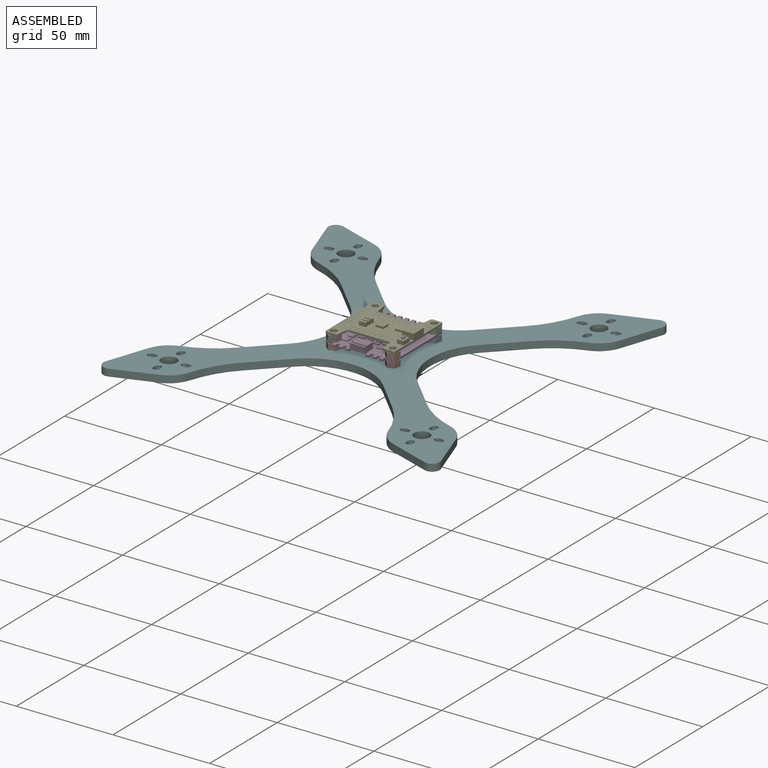
[diagram: assembled view]
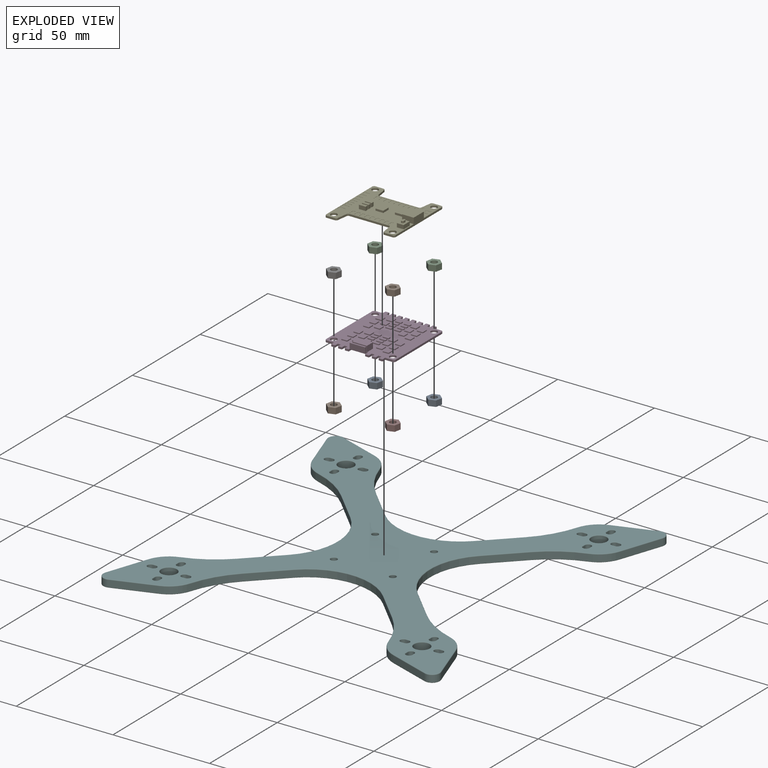
[diagram: exploded view]
GUIDED TOUR — MATED ASSEMBLY (Onshape document e8339020d537f8fa93d6a703, AutoMate assembly e8339020d537f8fa93d6a703_1a3c3acef15f079ed02e62ee_de662026c9102e0390e4941d_default)

This assembly has 11 components, labeled P0..P10 below (a component is one placed occurrence of a part; the same part can appear more than once), held together by 10 mates. A mate is a constraint between two components; its type names the relative motion it leaves free:
  FASTENED — locks the two components together rigidly (no relative motion).
Axis/direction vectors are unit vectors and 'through' points are millimeter coordinates, both in the assembly's world frame.

MATES
  1. FASTENED "Fastened 3": P7 <-> P5, direction (0.000, 0.000, -1.000) through (15.50, -15.32, 1.67) mm
  2. FASTENED "Fastened 1": P9 <-> P5, direction (0.000, 0.000, -1.000) through (-15.00, -15.32, 1.67) mm
  3. FASTENED "Fastened 5": P3 <-> P8, direction (0.000, 0.000, -1.000) through (15.50, 15.18, 4.67) mm
  4. FASTENED "Fastened 2": P0 <-> P5, direction (0.000, 0.000, -1.000) through (-15.00, 15.18, 1.67) mm
  5. FASTENED "Fastened 10": P4 <-> P2, direction (0.000, 0.000, -1.000) through (15.50, 15.18, 8.67) mm
  6. FASTENED "Fastened 8": P2 <-> P3, direction (0.000, 0.000, -1.000) through (15.50, 15.18, 5.67) mm
  7. FASTENED "Fastened 9": P6 <-> P3, direction (0.000, 0.000, -1.000) through (-15.00, -15.32, 5.67) mm
  8. FASTENED "Fastened 4": P8 <-> P5, direction (0.000, 0.000, -1.000) through (15.50, 15.18, 1.67) mm
  9. FASTENED "Fastened 6": P10 <-> P3, direction (0.000, 0.000, -1.000) through (-15.00, 15.18, 5.67) mm
  10. FASTENED "Fastened 7": P1 <-> P3, direction (0.000, 0.000, -1.000) through (15.50, -15.32, 5.67) mm

ASSEMBLY ORDER
  1. P3 — the base component [order verified]
  2. P1 [order verified]
  3. P10 [order verified]
  4. P8 [order verified]
  5. P7 [order verified]
  6. P6 [order verified]
  7. P2 [order verified]
  8. P9 [order verified]
  9. P0 [order verified]
  10. P4 [order verified]
  11. P5 [order verified]
Order-tag legend:
  [order verified] — this step's position reverses a verified removal order: the component was checked to insert without passing through the ones already placed.

Of the 11 components, 1 carries the full construction recipe — the FeatureScript program that regenerates the part's solid from scratch; the rest are supplied as boundary geometry only.
Each toured component is shown spotlighted twice — in the assembled view, then in the exploded view, where a leader line traces a displaced component back to its assembled socket (saturated green if recipe-attached, orange if geometry-only; every other component desaturated gray) — followed by its recipe or geometry summary and the mates that hold it.
NOTE — document 2 of 2 of this assembly tour. The two overview renders and the header above are repeated from document 1; the component sections below continue where the previous document stopped.
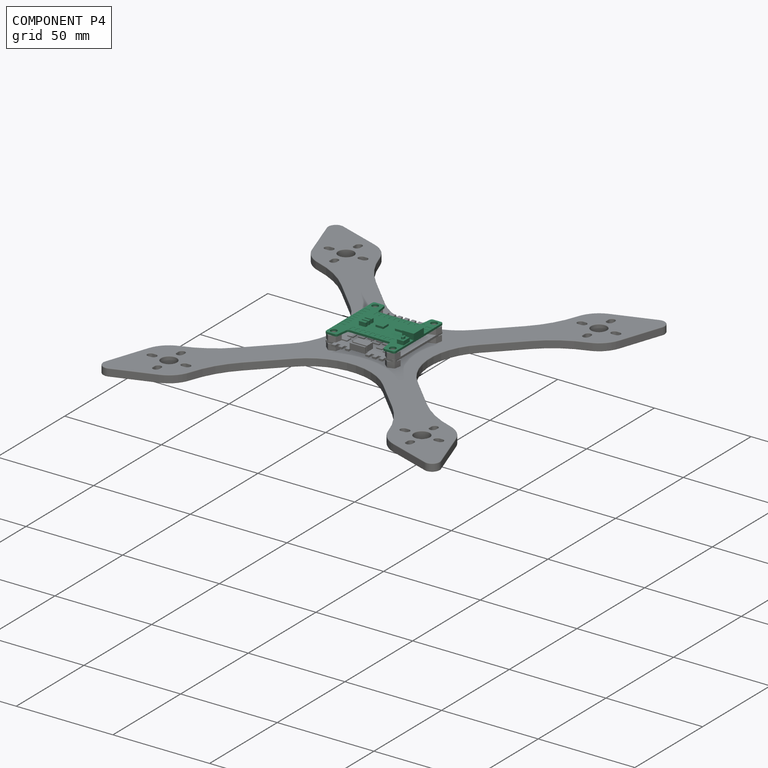
[diagram: component P4 — assembled]
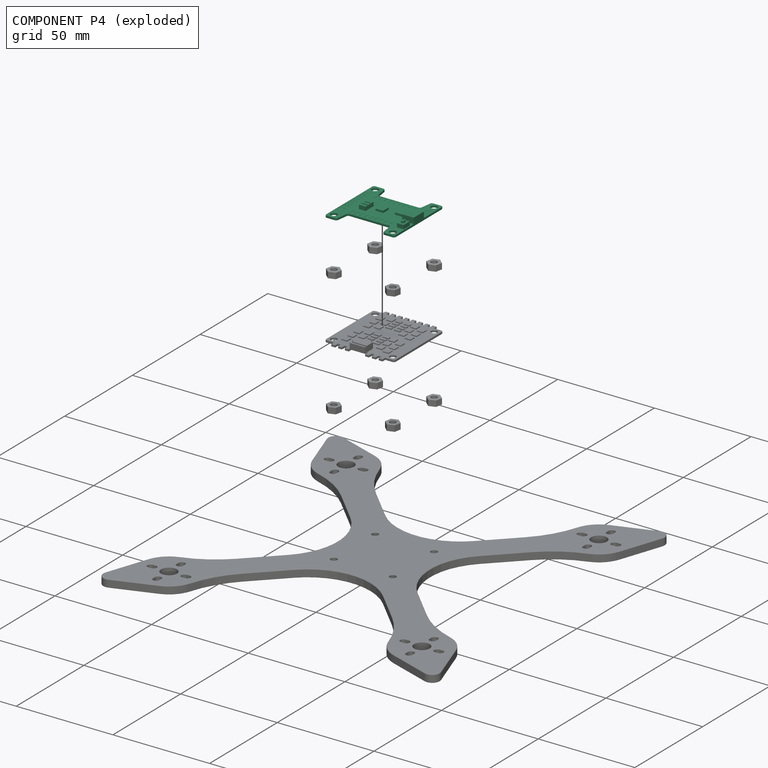
[diagram: component P4 — exploded]
COMPONENT P4 — recipe-attached (CADFS 00478924, mesh-verified: the recipe's output STEP matches this component's geometry to below the mesh-comparison resolution (tessellation chordal tolerance ~0.0766 mm)).
Held by: FASTENED mate "Fastened 10" to P2.
Construction recipe (FeatureScript — the CAD program that rebuilds this solid; sketch coordinates are in the units given by the * unit suffixes, e.g. mm):

FeatureScript 1511;
import(path : "onshape/std/geometry.fs", version : "1511.0");
import(path : "onshape/std/common.fs", version : "1511.0");
const mm = millimeter;
const VERTEX = EntityType.VERTEX;
const EDGE = EntityType.EDGE;
const FACE = EntityType.FACE;
const BODY = EntityType.BODY;
function v(x, y){return vector(x, y);}
function OD(order){return orderDisambiguation(order);}
function OSD(set){return originalSetDisambiguation(set);}
function TD(topology){return topologyDisambiguation(topology);}
function TDD(query){return trueDependencyDisambiguation(query);}
function sQuery(a, b, c) {return sketchEntityQuery(a, b, c);}

annotation { "Feature Type Name" : "Feature", "Feature Type Description" : "" }
export const myFeature = defineFeature(function(context is Context, id is Id, definition is map)
    precondition{}
    {
        {
            var Q0;
            Q0=qCreatedBy(makeId("Top.planeOp"),FACE);
            var sketch = newSketch(context, id + "F0", { "sketchPlane" : qUnion([Q0])});
            skLineSegment(sketch, "E0.bottom", {"start": v(17, -18) * mm, "end": v(12.87, -18) * mm});
            skLineSegment(sketch, "E0.top", {"start": v(17, 18) * mm, "end": v(12.87, 18) * mm});
            skLineSegment(sketch, "E0.left", {"start": v(18, -17) * mm, "end": v(18, 17) * mm});
            skLineSegment(sketch, "E0.right", {"start": v(-18, -17) * mm, "end": v(-18, 17) * mm});
            skPoint(sketch, "E0.middle", {"position": v(0, 0) * mm});
            skLineSegment(sketch, "E1.bottom", {"start": v(15.25, 15.25) * mm, "end": v(-15.25, 15.25) * mm, "construction": true});
            skLineSegment(sketch, "E1.top", {"start": v(15.25, -15.25) * mm, "end": v(-15.25, -15.25) * mm, "construction": true});
            skLineSegment(sketch, "E1.left", {"start": v(15.25, 15.25) * mm, "end": v(15.25, -15.25) * mm, "construction": true});
            skLineSegment(sketch, "E1.right", {"start": v(-15.25, 15.25) * mm, "end": v(-15.25, -15.25) * mm, "construction": true});
            skCircle(sketch, "E2", {"center": v(-15.25, 15.25) * mm, "radius": 1.63 * mm});
            skCircle(sketch, "E3.MirrorC", {"center": v(15.25, 15.25) * mm, "radius": 1.63 * mm});
            skCircle(sketch, "E4.MirrorC", {"center": v(-15.25, -15.25) * mm, "radius": 1.63 * mm});
            skCircle(sketch, "E5.MirrorC", {"center": v(15.25, -15.25) * mm, "radius": 1.63 * mm});
            skLineSegment(sketch, "E6.left", {"start": v(18, -11) * mm, "end": v(18, 11) * mm});
            skLineSegment(sketch, "E6.right", {"start": v(-18, -11) * mm, "end": v(-18, 11) * mm});
            skLineSegment(sketch, "E7", {"start": v(-11.88, 17.14) * mm, "end": v(-11.12, 11.86) * mm});
            skLineSegment(sketch, "E8.MirrorCS", {"start": v(11.88, 17.14) * mm, "end": v(11.12, 11.86) * mm});
            skLineSegment(sketch, "E9.MirrorCS", {"start": v(-11.88, -17.14) * mm, "end": v(-11.12, -11.86) * mm});
            skLineSegment(sketch, "E10.MirrorCS", {"start": v(11.88, -17.14) * mm, "end": v(11.12, -11.86) * mm});
            skLineSegment(sketch, "E11.trimOffspring", {"start": v(10.13, 11) * mm, "end": v(-10.13, 11) * mm});
            skLineSegment(sketch, "E12.trimOffspring", {"start": v(10.13, -11) * mm, "end": v(-10.13, -11) * mm});
            skLineSegment(sketch, "E13.trimOffspring", {"start": v(-12.87, 18) * mm, "end": v(-17, 18) * mm});
            skLineSegment(sketch, "E14.trimOffspring", {"start": v(-12.87, -18) * mm, "end": v(-17, -18) * mm});
            skPoint(sketch, "E15.visualSharp", {"position": v(-18, 18) * mm});
            skArc(sketch, "E15.filletArc", {"start": v(-17, 18) * mm, "mid": v(-17.7, 17.7) * mm, "end": v(-18, 17) * mm});
            skPoint(sketch, "E16.visualSharp", {"position": v(-12, 18) * mm});
            skArc(sketch, "E16.filletArc", {"start": v(-11.88, 17.14) * mm, "mid": v(-12.21, 17.76) * mm, "end": v(-12.87, 18) * mm});
            skPoint(sketch, "E17.visualSharp", {"position": v(-11, 11) * mm});
            skArc(sketch, "E17.filletArc", {"start": v(-11.12, 11.86) * mm, "mid": v(-10.78, 11.24) * mm, "end": v(-10.13, 11) * mm});
            skPoint(sketch, "E18.visualSharp", {"position": v(12, 18) * mm});
            skArc(sketch, "E18.filletArc", {"start": v(12.87, 18) * mm, "mid": v(12.21, 17.76) * mm, "end": v(11.88, 17.14) * mm});
            skPoint(sketch, "E19.visualSharp", {"position": v(11, 11) * mm});
            skArc(sketch, "E19.filletArc", {"start": v(10.13, 11) * mm, "mid": v(10.78, 11.24) * mm, "end": v(11.12, 11.86) * mm});
            skPoint(sketch, "E20.visualSharp", {"position": v(18, 18) * mm});
            skArc(sketch, "E20.filletArc", {"start": v(18, 17) * mm, "mid": v(17.7, 17.7) * mm, "end": v(17, 18) * mm});
            skPoint(sketch, "E21.visualSharp", {"position": v(18, -18) * mm});
            skArc(sketch, "E21.filletArc", {"start": v(17, -18) * mm, "mid": v(17.7, -17.7) * mm, "end": v(18, -17) * mm});
            skPoint(sketch, "E22.visualSharp", {"position": v(12, -18) * mm});
            skArc(sketch, "E22.filletArc", {"start": v(11.88, -17.14) * mm, "mid": v(12.21, -17.76) * mm, "end": v(12.87, -18) * mm});
            skPoint(sketch, "E23.visualSharp", {"position": v(11, -11) * mm});
            skArc(sketch, "E23.filletArc", {"start": v(11.12, -11.86) * mm, "mid": v(10.78, -11.24) * mm, "end": v(10.13, -11) * mm});
            skPoint(sketch, "E24.visualSharp", {"position": v(-11, -11) * mm});
            skArc(sketch, "E24.filletArc", {"start": v(-10.13, -11) * mm, "mid": v(-10.78, -11.24) * mm, "end": v(-11.12, -11.86) * mm});
            skPoint(sketch, "E25.visualSharp", {"position": v(-12, -18) * mm});
            skArc(sketch, "E25.filletArc", {"start": v(-12.87, -18) * mm, "mid": v(-12.21, -17.76) * mm, "end": v(-11.88, -17.14) * mm});
            skPoint(sketch, "E26.visualSharp", {"position": v(-18, -18) * mm});
            skArc(sketch, "E26.filletArc", {"start": v(-18, -17) * mm, "mid": v(-17.7, -17.7) * mm, "end": v(-17, -18) * mm});
            skSolve(sketch);
        }
        {
            var Q0;
            Q0=makeQuery(id+"F0.imprint","IMPRINT",FACE,{"disambiguationData":[TD([[makeQuery(id+"F0.imprint","IMPRINT",EDGE,{"derivedFrom":sQuery(id+"F0.wireOp",EDGE,"E0.bottom")}),-1.0]])]});
            extrude(context, id + "F1", {"entities" : qUnion([Q0]), "depth" : 1 * mm, "offsetDistance" : 25 * mm});
        }
        {
            var Q0;
            Q0=makeQuery(id+"F1.opExtrude","CAP_FACE",FACE,{"disambiguationData":[OSD([sQuery(id+"F0.wireOp",EDGE,"E0.bottom"),sQuery(id+"F0.wireOp",EDGE,"E0.top"),sQuery(id+"F0.wireOp",EDGE,"E0.left"),sQuery(id+"F0.wireOp",EDGE,"E0.right"),sQuery(id+"F0.wireOp",EDGE,"E2"),sQuery(id+"F0.wireOp",EDGE,"E3.MirrorC"),sQuery(id+"F0.wireOp",EDGE,"E4.MirrorC"),sQuery(id+"F0.wireOp",EDGE,"E5.MirrorC"),sQuery(id+"F0.wireOp",EDGE,"E7"),sQuery(id+"F0.wireOp",EDGE,"E8.MirrorCS"),sQuery(id+"F0.wireOp",EDGE,"E9.MirrorCS"),sQuery(id+"F0.wireOp",EDGE,"E10.MirrorCS"),sQuery(id+"F0.wireOp",EDGE,"E11.trimOffspring"),sQuery(id+"F0.wireOp",EDGE,"E12.trimOffspring"),sQuery(id+"F0.wireOp",EDGE,"E13.trimOffspring"),sQuery(id+"F0.wireOp",EDGE,"E14.trimOffspring"),sQuery(id+"F0.wireOp",EDGE,"E15.filletArc"),sQuery(id+"F0.wireOp",EDGE,"E16.filletArc"),sQuery(id+"F0.wireOp",EDGE,"E17.filletArc"),sQuery(id+"F0.wireOp",EDGE,"E18.filletArc"),sQuery(id+"F0.wireOp",EDGE,"E19.filletArc"),sQuery(id+"F0.wireOp",EDGE,"E20.filletArc"),sQuery(id+"F0.wireOp",EDGE,"E21.filletArc"),sQuery(id+"F0.wireOp",EDGE,"E22.filletArc"),sQuery(id+"F0.wireOp",EDGE,"E23.filletArc"),sQuery(id+"F0.wireOp",EDGE,"E24.filletArc"),sQuery(id+"F0.wireOp",EDGE,"E25.filletArc"),sQuery(id+"F0.wireOp",EDGE,"E26.filletArc")])],"isStart":false});
            var sketch = newSketch(context, id + "F2", { "sketchPlane" : qUnion([Q0])});
            skLineSegment(sketch, "E27.bottom", {"start": v(0.25, 7.5) * mm, "end": v(-0.25, 7.5) * mm});
            skLineSegment(sketch, "E27.top", {"start": v(0.25, 10.5) * mm, "end": v(-0.25, 10.5) * mm});
            skLineSegment(sketch, "E27.left", {"start": v(0.75, 8) * mm, "end": v(0.75, 10) * mm});
            skLineSegment(sketch, "E27.right", {"start": v(-0.75, 8) * mm, "end": v(-0.75, 10) * mm});
            skPoint(sketch, "E27.middle", {"position": v(0, 9) * mm});
            skPoint(sketch, "E28.visualSharp", {"position": v(-0.75, 10.5) * mm});
            skArc(sketch, "E28.filletArc", {"start": v(-0.25, 10.5) * mm, "mid": v(-0.6, 10.35) * mm, "end": v(-0.75, 10) * mm});
            skPoint(sketch, "E29.visualSharp", {"position": v(0.75, 10.5) * mm});
            skArc(sketch, "E29.filletArc", {"start": v(0.75, 10) * mm, "mid": v(0.6, 10.35) * mm, "end": v(0.25, 10.5) * mm});
            skPoint(sketch, "E30.visualSharp", {"position": v(0.75, 7.5) * mm});
            skArc(sketch, "E30.filletArc", {"start": v(0.25, 7.5) * mm, "mid": v(0.6, 7.65) * mm, "end": v(0.75, 8) * mm});
            skPoint(sketch, "E31.visualSharp", {"position": v(-0.75, 7.5) * mm});
            skArc(sketch, "E31.filletArc", {"start": v(-0.75, 8) * mm, "mid": v(-0.6, 7.65) * mm, "end": v(-0.25, 7.5) * mm});
            skLineSegment(sketch, "E32.1.0.0", {"start": v(3.25, 8) * mm, "end": v(3.25, 10) * mm});
            skPoint(sketch, "E32.1.0.1", {"position": v(3.25, 7.5) * mm});
            skLineSegment(sketch, "E32.1.0.2", {"start": v(1.75, 8) * mm, "end": v(1.75, 10) * mm});
            skArc(sketch, "E32.1.0.3", {"start": v(2.75, 7.5) * mm, "mid": v(3.1, 7.65) * mm, "end": v(3.25, 8) * mm});
            skPoint(sketch, "E32.1.0.4", {"position": v(1.75, 10.5) * mm});
            skArc(sketch, "E32.1.0.5", {"start": v(2.25, 10.5) * mm, "mid": v(1.9, 10.35) * mm, "end": v(1.75, 10) * mm});
            skPoint(sketch, "E32.1.0.6", {"position": v(3.25, 10.5) * mm});
            skArc(sketch, "E32.1.0.7", {"start": v(1.75, 8) * mm, "mid": v(1.9, 7.65) * mm, "end": v(2.25, 7.5) * mm});
            skLineSegment(sketch, "E32.1.0.8", {"start": v(2.75, 10.5) * mm, "end": v(2.25, 10.5) * mm});
            skLineSegment(sketch, "E32.1.0.9", {"start": v(2.75, 7.5) * mm, "end": v(2.25, 7.5) * mm});
            skPoint(sketch, "E32.1.0.10", {"position": v(2.5, 9) * mm});
            skPoint(sketch, "E32.1.0.11", {"position": v(1.75, 7.5) * mm});
            skArc(sketch, "E32.1.0.12", {"start": v(3.25, 10) * mm, "mid": v(3.1, 10.35) * mm, "end": v(2.75, 10.5) * mm});
            skLineSegment(sketch, "E32.2.0.0", {"start": v(5.75, 8) * mm, "end": v(5.75, 10) * mm});
            skPoint(sketch, "E32.2.0.1", {"position": v(5.75, 7.5) * mm});
            skLineSegment(sketch, "E32.2.0.2", {"start": v(4.25, 8) * mm, "end": v(4.25, 10) * mm});
            skArc(sketch, "E32.2.0.3", {"start": v(5.25, 7.5) * mm, "mid": v(5.6, 7.65) * mm, "end": v(5.75, 8) * mm});
            skPoint(sketch, "E32.2.0.4", {"position": v(4.25, 10.5) * mm});
            skArc(sketch, "E32.2.0.5", {"start": v(4.75, 10.5) * mm, "mid": v(4.4, 10.35) * mm, "end": v(4.25, 10) * mm});
            skPoint(sketch, "E32.2.0.6", {"position": v(5.75, 10.5) * mm});
            skArc(sketch, "E32.2.0.7", {"start": v(4.25, 8) * mm, "mid": v(4.4, 7.65) * mm, "end": v(4.75, 7.5) * mm});
            skLineSegment(sketch, "E32.2.0.8", {"start": v(5.25, 10.5) * mm, "end": v(4.75, 10.5) * mm});
            skLineSegment(sketch, "E32.2.0.9", {"start": v(5.25, 7.5) * mm, "end": v(4.75, 7.5) * mm});
            skPoint(sketch, "E32.2.0.10", {"position": v(5, 9) * mm});
            skPoint(sketch, "E32.2.0.11", {"position": v(4.25, 7.5) * mm});
            skArc(sketch, "E32.2.0.12", {"start": v(5.75, 10) * mm, "mid": v(5.6, 10.35) * mm, "end": v(5.25, 10.5) * mm});
            skLineSegment(sketch, "E32.3.0.0", {"start": v(8.25, 8) * mm, "end": v(8.25, 10) * mm});
            skPoint(sketch, "E32.3.0.1", {"position": v(8.25, 7.5) * mm});
            skLineSegment(sketch, "E32.3.0.2", {"start": v(6.75, 8) * mm, "end": v(6.75, 10) * mm});
            skArc(sketch, "E32.3.0.3", {"start": v(7.75, 7.5) * mm, "mid": v(8.1, 7.65) * mm, "end": v(8.25, 8) * mm});
            skPoint(sketch, "E32.3.0.4", {"position": v(6.75, 10.5) * mm});
            skArc(sketch, "E32.3.0.5", {"start": v(7.25, 10.5) * mm, "mid": v(6.9, 10.35) * mm, "end": v(6.75, 10) * mm});
            skPoint(sketch, "E32.3.0.6", {"position": v(8.25, 10.5) * mm});
            skArc(sketch, "E32.3.0.7", {"start": v(6.75, 8) * mm, "mid": v(6.9, 7.65) * mm, "end": v(7.25, 7.5) * mm});
            skLineSegment(sketch, "E32.3.0.8", {"start": v(7.75, 10.5) * mm, "end": v(7.25, 10.5) * mm});
            skLineSegment(sketch, "E32.3.0.9", {"start": v(7.75, 7.5) * mm, "end": v(7.25, 7.5) * mm});
            skPoint(sketch, "E32.3.0.10", {"position": v(7.5, 9) * mm});
            skPoint(sketch, "E32.3.0.11", {"position": v(6.75, 7.5) * mm});
            skArc(sketch, "E32.3.0.12", {"start": v(8.25, 10) * mm, "mid": v(8.1, 10.35) * mm, "end": v(7.75, 10.5) * mm});
            skLineSegment(sketch, "E32.4.0.0", {"start": v(10.75, 8) * mm, "end": v(10.75, 10) * mm});
            skPoint(sketch, "E32.4.0.1", {"position": v(10.75, 7.5) * mm});
            skLineSegment(sketch, "E32.4.0.2", {"start": v(9.25, 8) * mm, "end": v(9.25, 10) * mm});
            skArc(sketch, "E32.4.0.3", {"start": v(10.25, 7.5) * mm, "mid": v(10.6, 7.65) * mm, "end": v(10.75, 8) * mm});
            skPoint(sketch, "E32.4.0.4", {"position": v(9.25, 10.5) * mm});
            skArc(sketch, "E32.4.0.5", {"start": v(9.75, 10.5) * mm, "mid": v(9.4, 10.35) * mm, "end": v(9.25, 10) * mm});
            skPoint(sketch, "E32.4.0.6", {"position": v(10.75, 10.5) * mm});
            skArc(sketch, "E32.4.0.7", {"start": v(9.25, 8) * mm, "mid": v(9.4, 7.65) * mm, "end": v(9.75, 7.5) * mm});
            skLineSegment(sketch, "E32.4.0.8", {"start": v(10.25, 10.5) * mm, "end": v(9.75, 10.5) * mm});
            skLineSegment(sketch, "E32.4.0.9", {"start": v(10.25, 7.5) * mm, "end": v(9.75, 7.5) * mm});
            skPoint(sketch, "E32.4.0.10", {"position": v(10, 9) * mm});
            skPoint(sketch, "E32.4.0.11", {"position": v(9.25, 7.5) * mm});
            skArc(sketch, "E32.4.0.12", {"start": v(10.75, 10) * mm, "mid": v(10.6, 10.35) * mm, "end": v(10.25, 10.5) * mm});
            skLineSegment(sketch, "E32.direction1", {"start": v(-0.75, 7.5) * mm, "end": v(1.75, 7.5) * mm, "construction": true});
            skArc(sketch, "E33.MirrorCS", {"start": v(-9.25, 8) * mm, "mid": v(-9.4, 7.65) * mm, "end": v(-9.75, 7.5) * mm});
            skLineSegment(sketch, "E34.MirrorCS", {"start": v(-7.75, 10.5) * mm, "end": v(-7.25, 10.5) * mm});
            skArc(sketch, "E35.MirrorCS", {"start": v(-4.25, 8) * mm, "mid": v(-4.4, 7.65) * mm, "end": v(-4.75, 7.5) * mm});
            skArc(sketch, "E36.MirrorCS", {"start": v(-7.25, 10.5) * mm, "mid": v(-6.9, 10.35) * mm, "end": v(-6.75, 10) * mm});
            skArc(sketch, "E37.MirrorCS", {"start": v(-9.75, 10.5) * mm, "mid": v(-9.4, 10.35) * mm, "end": v(-9.25, 10) * mm});
            skArc(sketch, "E38.MirrorCS", {"start": v(-4.75, 10.5) * mm, "mid": v(-4.4, 10.35) * mm, "end": v(-4.25, 10) * mm});
            skArc(sketch, "E39.MirrorCS", {"start": v(-7.75, 7.5) * mm, "mid": v(-8.1, 7.65) * mm, "end": v(-8.25, 8) * mm});
            skArc(sketch, "E40.MirrorCS", {"start": v(-1.75, 8) * mm, "mid": v(-1.9, 7.65) * mm, "end": v(-2.25, 7.5) * mm});
            skArc(sketch, "E41.MirrorCS", {"start": v(-2.25, 10.5) * mm, "mid": v(-1.9, 10.35) * mm, "end": v(-1.75, 10) * mm});
            skArc(sketch, "E42.MirrorCS", {"start": v(-2.75, 7.5) * mm, "mid": v(-3.1, 7.65) * mm, "end": v(-3.25, 8) * mm});
            skArc(sketch, "E43.MirrorCS", {"start": v(-10.25, 7.5) * mm, "mid": v(-10.6, 7.65) * mm, "end": v(-10.75, 8) * mm});
            skArc(sketch, "E44.MirrorCS", {"start": v(-3.25, 10) * mm, "mid": v(-3.1, 10.35) * mm, "end": v(-2.75, 10.5) * mm});
            skLineSegment(sketch, "E45.MirrorCS", {"start": v(-2.75, 7.5) * mm, "end": v(-2.25, 7.5) * mm});
            skArc(sketch, "E46.MirrorCS", {"start": v(-5.25, 7.5) * mm, "mid": v(-5.6, 7.65) * mm, "end": v(-5.75, 8) * mm});
            skLineSegment(sketch, "E47.MirrorCS", {"start": v(-2.75, 10.5) * mm, "end": v(-2.25, 10.5) * mm});
            skArc(sketch, "E48.MirrorCS", {"start": v(-5.75, 10) * mm, "mid": v(-5.6, 10.35) * mm, "end": v(-5.25, 10.5) * mm});
            skArc(sketch, "E49.MirrorCS", {"start": v(-10.75, 10) * mm, "mid": v(-10.6, 10.35) * mm, "end": v(-10.25, 10.5) * mm});
            skLineSegment(sketch, "E50.MirrorCS", {"start": v(-10.25, 7.5) * mm, "end": v(-9.75, 7.5) * mm});
            skArc(sketch, "E51.MirrorCS", {"start": v(-8.25, 10) * mm, "mid": v(-8.1, 10.35) * mm, "end": v(-7.75, 10.5) * mm});
            skLineSegment(sketch, "E52.MirrorCS", {"start": v(-5.25, 10.5) * mm, "end": v(-4.75, 10.5) * mm});
            skArc(sketch, "E53.MirrorCS", {"start": v(-6.75, 8) * mm, "mid": v(-6.9, 7.65) * mm, "end": v(-7.25, 7.5) * mm});
            skLineSegment(sketch, "E54.MirrorCS", {"start": v(-7.75, 7.5) * mm, "end": v(-7.25, 7.5) * mm});
            skLineSegment(sketch, "E55.MirrorCS", {"start": v(-5.25, 7.5) * mm, "end": v(-4.75, 7.5) * mm});
            skLineSegment(sketch, "E56.MirrorCS", {"start": v(-10.25, 10.5) * mm, "end": v(-9.75, 10.5) * mm});
            skLineSegment(sketch, "E57.MirrorCS", {"start": v(0.75, 7.5) * mm, "end": v(-1.75, 7.5) * mm, "construction": true});
            skPoint(sketch, "E58.MirrorP", {"position": v(-3.25, 7.5) * mm});
            skPoint(sketch, "E59.MirrorP", {"position": v(-4.25, 7.5) * mm});
            skPoint(sketch, "E60.MirrorP", {"position": v(-5.75, 7.5) * mm});
            skPoint(sketch, "E61.MirrorP", {"position": v(-1.75, 10.5) * mm});
            skPoint(sketch, "E62.MirrorP", {"position": v(-6.75, 7.5) * mm});
            skPoint(sketch, "E63.MirrorP", {"position": v(-8.25, 7.5) * mm});
            skPoint(sketch, "E64.MirrorP", {"position": v(-9.25, 7.5) * mm});
            skPoint(sketch, "E65.MirrorP", {"position": v(-10.75, 10.5) * mm});
            skPoint(sketch, "E66.MirrorP", {"position": v(-5, 9) * mm});
            skLineSegment(sketch, "E67.MirrorCS", {"start": v(-1.75, 8) * mm, "end": v(-1.75, 10) * mm});
            skLineSegment(sketch, "E68.MirrorCS", {"start": v(-3.25, 8) * mm, "end": v(-3.25, 10) * mm});
            skPoint(sketch, "E69.MirrorP", {"position": v(-7.5, 9) * mm});
            skLineSegment(sketch, "E70.MirrorCS", {"start": v(-6.75, 8) * mm, "end": v(-6.75, 10) * mm});
            skPoint(sketch, "E71.MirrorP", {"position": v(-1.75, 7.5) * mm});
            skLineSegment(sketch, "E72.MirrorCS", {"start": v(-9.25, 8) * mm, "end": v(-9.25, 10) * mm});
            skPoint(sketch, "E73.MirrorP", {"position": v(-5.75, 10.5) * mm});
            skLineSegment(sketch, "E74.MirrorCS", {"start": v(-4.25, 8) * mm, "end": v(-4.25, 10) * mm});
            skPoint(sketch, "E75.MirrorP", {"position": v(-2.5, 9) * mm});
            skPoint(sketch, "E76.MirrorP", {"position": v(-8.25, 10.5) * mm});
            skLineSegment(sketch, "E77.MirrorCS", {"start": v(-8.25, 8) * mm, "end": v(-8.25, 10) * mm});
            skPoint(sketch, "E78.MirrorP", {"position": v(-9.25, 10.5) * mm});
            skLineSegment(sketch, "E79.MirrorCS", {"start": v(-5.75, 8) * mm, "end": v(-5.75, 10) * mm});
            skLineSegment(sketch, "E80.MirrorCS", {"start": v(-10.75, 8) * mm, "end": v(-10.75, 10) * mm});
            skPoint(sketch, "E81.MirrorP", {"position": v(-10, 9) * mm});
            skPoint(sketch, "E82.MirrorP", {"position": v(-6.75, 10.5) * mm});
            skPoint(sketch, "E83.MirrorP", {"position": v(-4.25, 10.5) * mm});
            skPoint(sketch, "E84.MirrorP", {"position": v(-3.25, 10.5) * mm});
            skPoint(sketch, "E85.MirrorP", {"position": v(-10.75, 7.5) * mm});
            skArc(sketch, "E86.MirrorCS", {"start": v(9.25, -8) * mm, "mid": v(9.4, -7.65) * mm, "end": v(9.75, -7.5) * mm});
            skLineSegment(sketch, "E87.MirrorCS", {"start": v(7.75, -10.5) * mm, "end": v(7.25, -10.5) * mm});
            skArc(sketch, "E88.MirrorCS", {"start": v(-3.25, -10) * mm, "mid": v(-3.1, -10.35) * mm, "end": v(-2.75, -10.5) * mm});
            skArc(sketch, "E89.MirrorCS", {"start": v(-9.75, -10.5) * mm, "mid": v(-9.4, -10.35) * mm, "end": v(-9.25, -10) * mm});
            skArc(sketch, "E90.MirrorCS", {"start": v(4.25, -8) * mm, "mid": v(4.4, -7.65) * mm, "end": v(4.75, -7.5) * mm});
            skArc(sketch, "E91.MirrorCS", {"start": v(7.25, -10.5) * mm, "mid": v(6.9, -10.35) * mm, "end": v(6.75, -10) * mm});
            skArc(sketch, "E92.MirrorCS", {"start": v(-4.25, -8) * mm, "mid": v(-4.4, -7.65) * mm, "end": v(-4.75, -7.5) * mm});
            skArc(sketch, "E93.MirrorCS", {"start": v(-8.25, -10) * mm, "mid": v(-8.1, -10.35) * mm, "end": v(-7.75, -10.5) * mm});
            skArc(sketch, "E94.MirrorCS", {"start": v(9.75, -10.5) * mm, "mid": v(9.4, -10.35) * mm, "end": v(9.25, -10) * mm});
            skArc(sketch, "E95.MirrorCS", {"start": v(-10.25, -7.5) * mm, "mid": v(-10.6, -7.65) * mm, "end": v(-10.75, -8) * mm});
            skArc(sketch, "E96.MirrorCS", {"start": v(4.75, -10.5) * mm, "mid": v(4.4, -10.35) * mm, "end": v(4.25, -10) * mm});
            skArc(sketch, "E97.MirrorCS", {"start": v(7.75, -7.5) * mm, "mid": v(8.1, -7.65) * mm, "end": v(8.25, -8) * mm});
            skLineSegment(sketch, "E98.MirrorCS", {"start": v(-7.75, -10.5) * mm, "end": v(-7.25, -10.5) * mm});
            skLineSegment(sketch, "E99.MirrorCS", {"start": v(-10.25, -7.5) * mm, "end": v(-9.75, -7.5) * mm});
            skArc(sketch, "E100.MirrorCS", {"start": v(1.75, -8) * mm, "mid": v(1.9, -7.65) * mm, "end": v(2.25, -7.5) * mm});
            skArc(sketch, "E101.MirrorCS", {"start": v(2.25, -10.5) * mm, "mid": v(1.9, -10.35) * mm, "end": v(1.75, -10) * mm});
            skArc(sketch, "E102.MirrorCS", {"start": v(2.75, -7.5) * mm, "mid": v(3.1, -7.65) * mm, "end": v(3.25, -8) * mm});
            skArc(sketch, "E103.MirrorCS", {"start": v(-0.75, -8) * mm, "mid": v(-0.6, -7.65) * mm, "end": v(-0.25, -7.5) * mm});
            skArc(sketch, "E104.MirrorCS", {"start": v(0.25, -7.5) * mm, "mid": v(0.6, -7.65) * mm, "end": v(0.75, -8) * mm});
            skArc(sketch, "E105.MirrorCS", {"start": v(0.75, -10) * mm, "mid": v(0.6, -10.35) * mm, "end": v(0.25, -10.5) * mm});
            skArc(sketch, "E106.MirrorCS", {"start": v(-0.25, -10.5) * mm, "mid": v(-0.6, -10.35) * mm, "end": v(-0.75, -10) * mm});
            skLineSegment(sketch, "E107.MirrorCS", {"start": v(0.25, -10.5) * mm, "end": v(-0.25, -10.5) * mm});
            skLineSegment(sketch, "E108.MirrorCS", {"start": v(0.25, -7.5) * mm, "end": v(-0.25, -7.5) * mm});
            skArc(sketch, "E109.MirrorCS", {"start": v(10.25, -7.5) * mm, "mid": v(10.6, -7.65) * mm, "end": v(10.75, -8) * mm});
            skArc(sketch, "E110.MirrorCS", {"start": v(-2.75, -7.5) * mm, "mid": v(-3.1, -7.65) * mm, "end": v(-3.25, -8) * mm});
            skArc(sketch, "E111.MirrorCS", {"start": v(3.25, -10) * mm, "mid": v(3.1, -10.35) * mm, "end": v(2.75, -10.5) * mm});
            skArc(sketch, "E112.MirrorCS", {"start": v(5.25, -7.5) * mm, "mid": v(5.6, -7.65) * mm, "end": v(5.75, -8) * mm});
            skLineSegment(sketch, "E113.MirrorCS", {"start": v(-5.25, -10.5) * mm, "end": v(-4.75, -10.5) * mm});
            skArc(sketch, "E114.MirrorCS", {"start": v(-7.25, -10.5) * mm, "mid": v(-6.9, -10.35) * mm, "end": v(-6.75, -10) * mm});
            skArc(sketch, "E115.MirrorCS", {"start": v(6.75, -8) * mm, "mid": v(6.9, -7.65) * mm, "end": v(7.25, -7.5) * mm});
            skLineSegment(sketch, "E116.MirrorCS", {"start": v(5.25, -10.5) * mm, "end": v(4.75, -10.5) * mm});
            skLineSegment(sketch, "E117.MirrorCS", {"start": v(-7.75, -7.5) * mm, "end": v(-7.25, -7.5) * mm});
            skLineSegment(sketch, "E118.MirrorCS", {"start": v(-2.75, -7.5) * mm, "end": v(-2.25, -7.5) * mm});
            skArc(sketch, "E119.MirrorCS", {"start": v(-4.75, -10.5) * mm, "mid": v(-4.4, -10.35) * mm, "end": v(-4.25, -10) * mm});
            skLineSegment(sketch, "E120.MirrorCS", {"start": v(10.25, -10.5) * mm, "end": v(9.75, -10.5) * mm});
            skLineSegment(sketch, "E121.MirrorCS", {"start": v(7.75, -7.5) * mm, "end": v(7.25, -7.5) * mm});
            skLineSegment(sketch, "E122.MirrorCS", {"start": v(5.25, -7.5) * mm, "end": v(4.75, -7.5) * mm});
            skLineSegment(sketch, "E123.MirrorCS", {"start": v(-5.25, -7.5) * mm, "end": v(-4.75, -7.5) * mm});
            skArc(sketch, "E124.MirrorCS", {"start": v(-7.75, -7.5) * mm, "mid": v(-8.1, -7.65) * mm, "end": v(-8.25, -8) * mm});
            skArc(sketch, "E125.MirrorCS", {"start": v(-5.25, -7.5) * mm, "mid": v(-5.6, -7.65) * mm, "end": v(-5.75, -8) * mm});
            skLineSegment(sketch, "E126.MirrorCS", {"start": v(10.25, -7.5) * mm, "end": v(9.75, -7.5) * mm});
            skArc(sketch, "E127.MirrorCS", {"start": v(8.25, -10) * mm, "mid": v(8.1, -10.35) * mm, "end": v(7.75, -10.5) * mm});
            skLineSegment(sketch, "E128.MirrorCS", {"start": v(-10.25, -10.5) * mm, "end": v(-9.75, -10.5) * mm});
            skArc(sketch, "E129.MirrorCS", {"start": v(-1.75, -8) * mm, "mid": v(-1.9, -7.65) * mm, "end": v(-2.25, -7.5) * mm});
            skLineSegment(sketch, "E130.MirrorCS", {"start": v(-2.75, -10.5) * mm, "end": v(-2.25, -10.5) * mm});
            skArc(sketch, "E131.MirrorCS", {"start": v(10.75, -10) * mm, "mid": v(10.6, -10.35) * mm, "end": v(10.25, -10.5) * mm});
            skArc(sketch, "E132.MirrorCS", {"start": v(5.75, -10) * mm, "mid": v(5.6, -10.35) * mm, "end": v(5.25, -10.5) * mm});
            skArc(sketch, "E133.MirrorCS", {"start": v(-5.75, -10) * mm, "mid": v(-5.6, -10.35) * mm, "end": v(-5.25, -10.5) * mm});
            skLineSegment(sketch, "E134.MirrorCS", {"start": v(2.75, -10.5) * mm, "end": v(2.25, -10.5) * mm});
            skLineSegment(sketch, "E135.MirrorCS", {"start": v(2.75, -7.5) * mm, "end": v(2.25, -7.5) * mm});
            skArc(sketch, "E136.MirrorCS", {"start": v(-2.25, -10.5) * mm, "mid": v(-1.9, -10.35) * mm, "end": v(-1.75, -10) * mm});
            skArc(sketch, "E137.MirrorCS", {"start": v(-9.25, -8) * mm, "mid": v(-9.4, -7.65) * mm, "end": v(-9.75, -7.5) * mm});
            skArc(sketch, "E138.MirrorCS", {"start": v(-10.75, -10) * mm, "mid": v(-10.6, -10.35) * mm, "end": v(-10.25, -10.5) * mm});
            skArc(sketch, "E139.MirrorCS", {"start": v(-6.75, -8) * mm, "mid": v(-6.9, -7.65) * mm, "end": v(-7.25, -7.5) * mm});
            skLineSegment(sketch, "E140.MirrorCS", {"start": v(-0.75, -7.5) * mm, "end": v(1.75, -7.5) * mm, "construction": true});
            skLineSegment(sketch, "E141.MirrorCS", {"start": v(0.75, -7.5) * mm, "end": v(-1.75, -7.5) * mm, "construction": true});
            skPoint(sketch, "E142.MirrorP", {"position": v(-1.75, -7.5) * mm});
            skPoint(sketch, "E143.MirrorP", {"position": v(-0.75, -7.5) * mm});
            skLineSegment(sketch, "E144.MirrorCS", {"start": v(-6.75, -8) * mm, "end": v(-6.75, -10) * mm});
            skPoint(sketch, "E145.MirrorP", {"position": v(-1.75, -10.5) * mm});
            skPoint(sketch, "E146.MirrorP", {"position": v(-2.5, -9) * mm});
            skPoint(sketch, "E147.MirrorP", {"position": v(-10.75, -7.5) * mm});
            skPoint(sketch, "E148.MirrorP", {"position": v(0, -9) * mm});
            skPoint(sketch, "E149.MirrorP", {"position": v(1.75, -7.5) * mm});
            skPoint(sketch, "E150.MirrorP", {"position": v(3.25, -7.5) * mm});
            skPoint(sketch, "E151.MirrorP", {"position": v(4.25, -7.5) * mm});
            skPoint(sketch, "E152.MirrorP", {"position": v(9.25, -10.5) * mm});
            skPoint(sketch, "E153.MirrorP", {"position": v(-7.5, -9) * mm});
            skPoint(sketch, "E154.MirrorP", {"position": v(5.75, -10.5) * mm});
            skLineSegment(sketch, "E155.MirrorCS", {"start": v(-3.25, -8) * mm, "end": v(-3.25, -10) * mm});
            skPoint(sketch, "E156.MirrorP", {"position": v(-5.75, -7.5) * mm});
            skPoint(sketch, "E157.MirrorP", {"position": v(-3.25, -10.5) * mm});
            skLineSegment(sketch, "E158.MirrorCS", {"start": v(1.75, -8) * mm, "end": v(1.75, -10) * mm});
            skLineSegment(sketch, "E159.MirrorCS", {"start": v(3.25, -8) * mm, "end": v(3.25, -10) * mm});
            skPoint(sketch, "E160.MirrorP", {"position": v(2.5, -9) * mm});
            skPoint(sketch, "E161.MirrorP", {"position": v(8.25, -10.5) * mm});
            skLineSegment(sketch, "E162.MirrorCS", {"start": v(-0.75, -8) * mm, "end": v(-0.75, -10) * mm});
            skLineSegment(sketch, "E163.MirrorCS", {"start": v(0.75, -8) * mm, "end": v(0.75, -10) * mm});
            skPoint(sketch, "E164.MirrorP", {"position": v(0.75, -7.5) * mm});
            skLineSegment(sketch, "E165.MirrorCS", {"start": v(-1.75, -8) * mm, "end": v(-1.75, -10) * mm});
            skPoint(sketch, "E166.MirrorP", {"position": v(10, -9) * mm});
            skPoint(sketch, "E167.MirrorP", {"position": v(7.5, -9) * mm});
            skPoint(sketch, "E168.MirrorP", {"position": v(-0.75, -10.5) * mm});
            skPoint(sketch, "E169.MirrorP", {"position": v(-6.75, -7.5) * mm});
            skPoint(sketch, "E170.MirrorP", {"position": v(-8.25, -10.5) * mm});
            skLineSegment(sketch, "E171.MirrorCS", {"start": v(-9.25, -8) * mm, "end": v(-9.25, -10) * mm});
            skPoint(sketch, "E172.MirrorP", {"position": v(5, -9) * mm});
            skPoint(sketch, "E173.MirrorP", {"position": v(-5.75, -10.5) * mm});
            skPoint(sketch, "E174.MirrorP", {"position": v(10.75, -10.5) * mm});
            skPoint(sketch, "E175.MirrorP", {"position": v(9.25, -7.5) * mm});
            skPoint(sketch, "E176.MirrorP", {"position": v(6.75, -7.5) * mm});
            skPoint(sketch, "E177.MirrorP", {"position": v(8.25, -7.5) * mm});
            skPoint(sketch, "E178.MirrorP", {"position": v(5.75, -7.5) * mm});
            skPoint(sketch, "E179.MirrorP", {"position": v(1.75, -10.5) * mm});
            skPoint(sketch, "E180.MirrorP", {"position": v(-9.25, -10.5) * mm});
            skPoint(sketch, "E181.MirrorP", {"position": v(-8.25, -7.5) * mm});
            skLineSegment(sketch, "E182.MirrorCS", {"start": v(-4.25, -8) * mm, "end": v(-4.25, -10) * mm});
            skLineSegment(sketch, "E183.MirrorCS", {"start": v(10.75, -8) * mm, "end": v(10.75, -10) * mm});
            skPoint(sketch, "E184.MirrorP", {"position": v(0.75, -10.5) * mm});
            skPoint(sketch, "E185.MirrorP", {"position": v(-9.25, -7.5) * mm});
            skPoint(sketch, "E186.MirrorP", {"position": v(-10, -9) * mm});
            skLineSegment(sketch, "E187.MirrorCS", {"start": v(5.75, -8) * mm, "end": v(5.75, -10) * mm});
            skLineSegment(sketch, "E188.MirrorCS", {"start": v(-8.25, -8) * mm, "end": v(-8.25, -10) * mm});
            skPoint(sketch, "E189.MirrorP", {"position": v(4.25, -10.5) * mm});
            skPoint(sketch, "E190.MirrorP", {"position": v(-10.75, -10.5) * mm});
            skPoint(sketch, "E191.MirrorP", {"position": v(10.75, -7.5) * mm});
            skLineSegment(sketch, "E192.MirrorCS", {"start": v(8.25, -8) * mm, "end": v(8.25, -10) * mm});
            skLineSegment(sketch, "E193.MirrorCS", {"start": v(-5.75, -8) * mm, "end": v(-5.75, -10) * mm});
            skPoint(sketch, "E194.MirrorP", {"position": v(-6.75, -10.5) * mm});
            skPoint(sketch, "E195.MirrorP", {"position": v(-4.25, -10.5) * mm});
            skPoint(sketch, "E196.MirrorP", {"position": v(-3.25, -7.5) * mm});
            skPoint(sketch, "E197.MirrorP", {"position": v(6.75, -10.5) * mm});
            skLineSegment(sketch, "E198.MirrorCS", {"start": v(9.25, -8) * mm, "end": v(9.25, -10) * mm});
            skPoint(sketch, "E199.MirrorP", {"position": v(-4.25, -7.5) * mm});
            skLineSegment(sketch, "E200.MirrorCS", {"start": v(6.75, -8) * mm, "end": v(6.75, -10) * mm});
            skLineSegment(sketch, "E201.MirrorCS", {"start": v(-10.75, -8) * mm, "end": v(-10.75, -10) * mm});
            skLineSegment(sketch, "E202.MirrorCS", {"start": v(4.25, -8) * mm, "end": v(4.25, -10) * mm});
            skPoint(sketch, "E203.MirrorP", {"position": v(-5, -9) * mm});
            skPoint(sketch, "E204.MirrorP", {"position": v(3.25, -10.5) * mm});
            skLineSegment(sketch, "E205.MirrorCS", {"start": v(-14.5, 10.12) * mm, "end": v(-14.5, 9.62) * mm});
            skArc(sketch, "E206.MirrorCS", {"start": v(-14.5, 9.62) * mm, "mid": v(-14.65, 9.27) * mm, "end": v(-15, 9.12) * mm});
            skArc(sketch, "E207.MirrorCS", {"start": v(-17.5, 10.12) * mm, "mid": v(-17.35, 10.48) * mm, "end": v(-17, 10.62) * mm});
            skArc(sketch, "E208.MirrorCS", {"start": v(-15, 10.62) * mm, "mid": v(-14.65, 10.48) * mm, "end": v(-14.5, 10.12) * mm});
            skArc(sketch, "E209.MirrorCS", {"start": v(-17, 9.12) * mm, "mid": v(-17.35, 9.27) * mm, "end": v(-17.5, 9.62) * mm});
            skLineSegment(sketch, "E210.MirrorCS", {"start": v(-17.5, 10.12) * mm, "end": v(-17.5, 9.62) * mm});
            skLineSegment(sketch, "E211.MirrorCS", {"start": v(-17, 9.13) * mm, "end": v(-15, 9.12) * mm});
            skLineSegment(sketch, "E212.MirrorCS", {"start": v(-17, 10.63) * mm, "end": v(-15, 10.62) * mm});
            skLineSegment(sketch, "E213.1.0.0", {"start": v(-16.99, 8.13) * mm, "end": v(-14.99, 8.13) * mm});
            skLineSegment(sketch, "E213.1.0.1", {"start": v(-16.99, 6.63) * mm, "end": v(-14.99, 6.63) * mm});
            skArc(sketch, "E213.1.0.2", {"start": v(-16.99, 6.63) * mm, "mid": v(-17.34, 6.77) * mm, "end": v(-17.49, 7.13) * mm});
            skArc(sketch, "E213.1.0.3", {"start": v(-17.49, 7.63) * mm, "mid": v(-17.34, 7.98) * mm, "end": v(-16.99, 8.13) * mm});
            skArc(sketch, "E213.1.0.4", {"start": v(-14.49, 7.13) * mm, "mid": v(-14.63, 6.77) * mm, "end": v(-14.99, 6.63) * mm});
            skArc(sketch, "E213.1.0.5", {"start": v(-14.99, 8.13) * mm, "mid": v(-14.63, 7.98) * mm, "end": v(-14.49, 7.63) * mm});
            skLineSegment(sketch, "E213.1.0.6", {"start": v(-17.49, 7.63) * mm, "end": v(-17.49, 7.13) * mm});
            skLineSegment(sketch, "E213.1.0.7", {"start": v(-14.49, 7.63) * mm, "end": v(-14.49, 7.13) * mm});
            skLineSegment(sketch, "E213.2.0.0", {"start": v(-16.97, 5.63) * mm, "end": v(-14.97, 5.63) * mm});
            skLineSegment(sketch, "E213.2.0.1", {"start": v(-16.97, 4.13) * mm, "end": v(-14.97, 4.13) * mm});
            skArc(sketch, "E213.2.0.2", {"start": v(-16.97, 4.13) * mm, "mid": v(-17.32, 4.27) * mm, "end": v(-17.47, 4.63) * mm});
            skArc(sketch, "E213.2.0.3", {"start": v(-17.47, 5.13) * mm, "mid": v(-17.32, 5.48) * mm, "end": v(-16.97, 5.63) * mm});
            skArc(sketch, "E213.2.0.4", {"start": v(-14.47, 4.63) * mm, "mid": v(-14.62, 4.27) * mm, "end": v(-14.97, 4.13) * mm});
            skArc(sketch, "E213.2.0.5", {"start": v(-14.97, 5.63) * mm, "mid": v(-14.62, 5.48) * mm, "end": v(-14.47, 5.13) * mm});
            skLineSegment(sketch, "E213.2.0.6", {"start": v(-17.47, 5.13) * mm, "end": v(-17.47, 4.63) * mm});
            skLineSegment(sketch, "E213.2.0.7", {"start": v(-14.47, 5.13) * mm, "end": v(-14.47, 4.63) * mm});
            skLineSegment(sketch, "E213.direction1", {"start": v(-17, 9.12) * mm, "end": v(-16.99, 6.63) * mm, "construction": true});
            skLineSegment(sketch, "E214.MirrorCS", {"start": v(14.5, 10.12) * mm, "end": v(14.5, 9.62) * mm});
            skLineSegment(sketch, "E215.MirrorCS", {"start": v(14.49, 7.63) * mm, "end": v(14.49, 7.13) * mm});
            skLineSegment(sketch, "E216.MirrorCS", {"start": v(17.49, 7.63) * mm, "end": v(17.49, 7.13) * mm});
            skLineSegment(sketch, "E217.MirrorCS", {"start": v(17.5, 10.12) * mm, "end": v(17.5, 9.62) * mm});
            skArc(sketch, "E218.MirrorCS", {"start": v(15, 10.62) * mm, "mid": v(14.65, 10.48) * mm, "end": v(14.5, 10.12) * mm});
            skArc(sketch, "E219.MirrorCS", {"start": v(14.99, 8.13) * mm, "mid": v(14.63, 7.98) * mm, "end": v(14.49, 7.63) * mm});
            skArc(sketch, "E220.MirrorCS", {"start": v(14.49, 7.13) * mm, "mid": v(14.63, 6.77) * mm, "end": v(14.99, 6.63) * mm});
            skArc(sketch, "E221.MirrorCS", {"start": v(17.49, 7.63) * mm, "mid": v(17.34, 7.98) * mm, "end": v(16.99, 8.13) * mm});
            skArc(sketch, "E222.MirrorCS", {"start": v(16.99, 6.63) * mm, "mid": v(17.34, 6.77) * mm, "end": v(17.49, 7.13) * mm});
            skLineSegment(sketch, "E223.MirrorCS", {"start": v(16.99, 8.13) * mm, "end": v(14.99, 8.13) * mm});
            skLineSegment(sketch, "E224.MirrorCS", {"start": v(17, 9.12) * mm, "end": v(16.99, 6.63) * mm, "construction": true});
            skArc(sketch, "E225.MirrorCS", {"start": v(14.5, 9.62) * mm, "mid": v(14.65, 9.27) * mm, "end": v(15, 9.12) * mm});
            skLineSegment(sketch, "E226.MirrorCS", {"start": v(17, 9.13) * mm, "end": v(15, 9.12) * mm});
            skArc(sketch, "E227.MirrorCS", {"start": v(17.5, 10.12) * mm, "mid": v(17.35, 10.48) * mm, "end": v(17, 10.62) * mm});
            skLineSegment(sketch, "E228.MirrorCS", {"start": v(16.99, 6.63) * mm, "end": v(14.99, 6.63) * mm});
            skArc(sketch, "E229.MirrorCS", {"start": v(17, 9.12) * mm, "mid": v(17.35, 9.27) * mm, "end": v(17.5, 9.62) * mm});
            skLineSegment(sketch, "E230.MirrorCS", {"start": v(17, 10.63) * mm, "end": v(15, 10.62) * mm});
            skCircle(sketch, "E231", {"center": v(12.44, 11.36) * mm, "radius": 0.5 * mm});
            skLineSegment(sketch, "E232.2.0.0", {"start": v(-16.97, 3.13) * mm, "end": v(-14.97, 3.13) * mm});
            skLineSegment(sketch, "E232.2.0.1", {"start": v(-16.97, 1.63) * mm, "end": v(-14.97, 1.63) * mm});
            skArc(sketch, "E232.2.0.2", {"start": v(-16.97, 1.63) * mm, "mid": v(-17.32, 1.77) * mm, "end": v(-17.47, 2.13) * mm});
            skArc(sketch, "E232.2.0.3", {"start": v(-17.47, 2.63) * mm, "mid": v(-17.32, 2.98) * mm, "end": v(-16.97, 3.13) * mm});
            skArc(sketch, "E232.2.0.4", {"start": v(-14.47, 2.13) * mm, "mid": v(-14.62, 1.77) * mm, "end": v(-14.97, 1.63) * mm});
            skArc(sketch, "E232.2.0.5", {"start": v(-14.97, 3.13) * mm, "mid": v(-14.62, 2.98) * mm, "end": v(-14.47, 2.63) * mm});
            skLineSegment(sketch, "E232.2.0.6", {"start": v(-17.47, 2.63) * mm, "end": v(-17.47, 2.13) * mm});
            skLineSegment(sketch, "E232.2.0.7", {"start": v(-14.47, 2.63) * mm, "end": v(-14.47, 2.13) * mm});
            skLineSegment(sketch, "E233.1.0.0", {"start": v(-16.95, 1.13) * mm, "end": v(-14.95, 1.13) * mm});
            skLineSegment(sketch, "E233.1.0.1", {"start": v(-16.95, -0.37) * mm, "end": v(-14.95, -0.37) * mm});
            skArc(sketch, "E233.1.0.2", {"start": v(-16.95, -0.37) * mm, "mid": v(-17.3, -0.23) * mm, "end": v(-17.45, 0.13) * mm});
            skArc(sketch, "E233.1.0.3", {"start": v(-17.45, 0.63) * mm, "mid": v(-17.3, 0.98) * mm, "end": v(-16.95, 1.13) * mm});
            skArc(sketch, "E233.1.0.4", {"start": v(-14.45, 0.13) * mm, "mid": v(-14.6, -0.23) * mm, "end": v(-14.95, -0.37) * mm});
            skArc(sketch, "E233.1.0.5", {"start": v(-14.95, 1.13) * mm, "mid": v(-14.6, 0.98) * mm, "end": v(-14.45, 0.63) * mm});
            skLineSegment(sketch, "E233.1.0.6", {"start": v(-14.45, 0.63) * mm, "end": v(-14.45, 0.13) * mm});
            skLineSegment(sketch, "E233.1.0.7", {"start": v(-17.45, 0.63) * mm, "end": v(-17.45, 0.13) * mm});
            skLineSegment(sketch, "E233.2.0.0", {"start": v(-16.92, -0.87) * mm, "end": v(-14.92, -0.87) * mm});
            skLineSegment(sketch, "E233.2.0.1", {"start": v(-16.92, -2.37) * mm, "end": v(-14.92, -2.37) * mm});
            skArc(sketch, "E233.2.0.2", {"start": v(-16.92, -2.37) * mm, "mid": v(-17.28, -2.23) * mm, "end": v(-17.42, -1.87) * mm});
            skArc(sketch, "E233.2.0.3", {"start": v(-17.42, -1.37) * mm, "mid": v(-17.28, -1.02) * mm, "end": v(-16.92, -0.87) * mm});
            skArc(sketch, "E233.2.0.4", {"start": v(-14.42, -1.87) * mm, "mid": v(-14.57, -2.23) * mm, "end": v(-14.92, -2.37) * mm});
            skArc(sketch, "E233.2.0.5", {"start": v(-14.92, -0.87) * mm, "mid": v(-14.57, -1.02) * mm, "end": v(-14.42, -1.37) * mm});
            skLineSegment(sketch, "E233.2.0.6", {"start": v(-14.42, -1.37) * mm, "end": v(-14.42, -1.87) * mm});
            skLineSegment(sketch, "E233.2.0.7", {"start": v(-17.42, -1.37) * mm, "end": v(-17.42, -1.87) * mm});
            skLineSegment(sketch, "E233.3.0.0", {"start": v(-16.9, -2.87) * mm, "end": v(-14.9, -2.87) * mm});
            skLineSegment(sketch, "E233.3.0.1", {"start": v(-16.9, -4.37) * mm, "end": v(-14.9, -4.37) * mm});
            skArc(sketch, "E233.3.0.2", {"start": v(-16.9, -4.37) * mm, "mid": v(-17.25, -4.23) * mm, "end": v(-17.4, -3.87) * mm});
            skArc(sketch, "E233.3.0.3", {"start": v(-17.4, -3.37) * mm, "mid": v(-17.25, -3.02) * mm, "end": v(-16.9, -2.87) * mm});
            skArc(sketch, "E233.3.0.4", {"start": v(-14.4, -3.87) * mm, "mid": v(-14.55, -4.23) * mm, "end": v(-14.9, -4.37) * mm});
            skArc(sketch, "E233.3.0.5", {"start": v(-14.9, -2.87) * mm, "mid": v(-14.55, -3.02) * mm, "end": v(-14.4, -3.37) * mm});
            skLineSegment(sketch, "E233.3.0.6", {"start": v(-14.4, -3.37) * mm, "end": v(-14.4, -3.87) * mm});
            skLineSegment(sketch, "E233.3.0.7", {"start": v(-17.4, -3.37) * mm, "end": v(-17.4, -3.87) * mm});
            skLineSegment(sketch, "E233.direction1", {"start": v(-16.97, 1.63) * mm, "end": v(-16.95, -0.37) * mm, "construction": true});
            skLineSegment(sketch, "E234.bottom", {"start": v(-14.42, -4.87) * mm, "end": v(-17.58, -4.87) * mm});
            skLineSegment(sketch, "E234.top", {"start": v(-14.42, -6.82) * mm, "end": v(-17.58, -6.82) * mm});
            skLineSegment(sketch, "E234.left", {"start": v(-14.42, -4.87) * mm, "end": v(-14.42, -6.82) * mm});
            skLineSegment(sketch, "E234.right", {"start": v(-17.58, -4.87) * mm, "end": v(-17.58, -6.82) * mm});
            skPoint(sketch, "E234.middle", {"position": v(-16, -5.85) * mm});
            skLineSegment(sketch, "E235.1.0.0", {"start": v(-14.43, -7.57) * mm, "end": v(-17.59, -7.57) * mm});
            skLineSegment(sketch, "E235.1.0.1", {"start": v(-14.43, -9.52) * mm, "end": v(-17.59, -9.52) * mm});
            skLineSegment(sketch, "E235.1.0.2", {"start": v(-14.43, -7.57) * mm, "end": v(-14.43, -9.52) * mm});
            skLineSegment(sketch, "E235.1.0.3", {"start": v(-17.59, -7.57) * mm, "end": v(-17.59, -9.52) * mm});
            skPoint(sketch, "E235.1.0.4", {"position": v(-16, -8.55) * mm});
            skLineSegment(sketch, "E235.direction1", {"start": v(-17.58, -6.82) * mm, "end": v(-17.59, -9.52) * mm, "construction": true});
            skSolve(sketch);
        }
        {
            var Q0;
            Q0 = qSketchRegion(id + "F2", true);
            extrude(context, id + "F3", {"entities" : qUnion([Q0]), "operationType" : NewBodyOperationType.REMOVE, "oppositeDirection" : true, "depth" : .1 * mm, "offsetDistance" : 25 * mm});
        }
        {
            var Q0;
            Q0=makeQuery(id+"F1.opExtrude","CAP_FACE",FACE,{"disambiguationData":[OSD([sQuery(id+"F0.wireOp",EDGE,"E0.bottom"),sQuery(id+"F0.wireOp",EDGE,"E0.top"),sQuery(id+"F0.wireOp",EDGE,"E0.left"),sQuery(id+"F0.wireOp",EDGE,"E0.right"),sQuery(id+"F0.wireOp",EDGE,"E2"),sQuery(id+"F0.wireOp",EDGE,"E3.MirrorC"),sQuery(id+"F0.wireOp",EDGE,"E4.MirrorC"),sQuery(id+"F0.wireOp",EDGE,"E5.MirrorC"),sQuery(id+"F0.wireOp",EDGE,"E7"),sQuery(id+"F0.wireOp",EDGE,"E8.MirrorCS"),sQuery(id+"F0.wireOp",EDGE,"E9.MirrorCS"),sQuery(id+"F0.wireOp",EDGE,"E10.MirrorCS"),sQuery(id+"F0.wireOp",EDGE,"E11.trimOffspring"),sQuery(id+"F0.wireOp",EDGE,"E12.trimOffspring"),sQuery(id+"F0.wireOp",EDGE,"E13.trimOffspring"),sQuery(id+"F0.wireOp",EDGE,"E14.trimOffspring"),sQuery(id+"F0.wireOp",EDGE,"E15.filletArc"),sQuery(id+"F0.wireOp",EDGE,"E16.filletArc"),sQuery(id+"F0.wireOp",EDGE,"E17.filletArc"),sQuery(id+"F0.wireOp",EDGE,"E18.filletArc"),sQuery(id+"F0.wireOp",EDGE,"E19.filletArc"),sQuery(id+"F0.wireOp",EDGE,"E20.filletArc"),sQuery(id+"F0.wireOp",EDGE,"E21.filletArc"),sQuery(id+"F0.wireOp",EDGE,"E22.filletArc"),sQuery(id+"F0.wireOp",EDGE,"E23.filletArc"),sQuery(id+"F0.wireOp",EDGE,"E24.filletArc"),sQuery(id+"F0.wireOp",EDGE,"E25.filletArc"),sQuery(id+"F0.wireOp",EDGE,"E26.filletArc")])],"isStart":false});
            var sketch = newSketch(context, id + "F4", { "sketchPlane" : qUnion([Q0])});
            skLineSegment(sketch, "E236.bottom", {"start": v(11, -0.5) * mm, "end": v(6, -0.5) * mm});
            skLineSegment(sketch, "E236.top", {"start": v(11, 4.5) * mm, "end": v(6, 4.5) * mm});
            skLineSegment(sketch, "E236.left", {"start": v(11, -0.5) * mm, "end": v(11, 4.5) * mm});
            skLineSegment(sketch, "E236.right", {"start": v(6, -0.5) * mm, "end": v(6, 4.5) * mm});
            skPoint(sketch, "E236.middle", {"position": v(8.5, 2) * mm});
            skLineSegment(sketch, "E237.bottom", {"start": v(1, -2) * mm, "end": v(-3, -2) * mm});
            skLineSegment(sketch, "E237.top", {"start": v(1, 2) * mm, "end": v(-3, 2) * mm});
            skLineSegment(sketch, "E237.left", {"start": v(1, -2) * mm, "end": v(1, 2) * mm});
            skLineSegment(sketch, "E237.right", {"start": v(-3, -2) * mm, "end": v(-3, 2) * mm});
            skPoint(sketch, "E237.middle", {"position": v(-1, 0) * mm});
            skLineSegment(sketch, "E238.bottom", {"start": v(14, -6) * mm, "end": v(17.5, -6) * mm});
            skLineSegment(sketch, "E238.top", {"start": v(14, -10.5) * mm, "end": v(17.5, -10.5) * mm});
            skLineSegment(sketch, "E238.left", {"start": v(14, -6) * mm, "end": v(14, -10.5) * mm});
            skLineSegment(sketch, "E238.right", {"start": v(17.5, -6) * mm, "end": v(17.5, -10.5) * mm});
            skPoint(sketch, "E238.middle", {"position": v(15.75, -8.25) * mm});
            skEllipse(sketch, "E239", {"center": v(15.75, -8.25) * mm, "majorRadius": 1.2 * mm, "minorRadius": 0.7 * mm, "majorAxis": v(0, -1)});
            skLineSegment(sketch, "E240.bottom", {"start": v(-6.25, -0.28) * mm, "end": v(-9.75, -0.28) * mm});
            skLineSegment(sketch, "E240.top", {"start": v(-6.25, 1.22) * mm, "end": v(-9.75, 1.22) * mm});
            skLineSegment(sketch, "E240.left", {"start": v(-6.25, -0.28) * mm, "end": v(-6.25, 1.22) * mm});
            skLineSegment(sketch, "E240.right", {"start": v(-9.75, -0.28) * mm, "end": v(-9.75, 1.22) * mm});
            skPoint(sketch, "E240.middle", {"position": v(-8, 0.47) * mm});
            skLineSegment(sketch, "E241.1.0.0", {"start": v(-6.24, -2.48) * mm, "end": v(-6.24, -0.98) * mm});
            skLineSegment(sketch, "E241.1.0.1", {"start": v(-6.24, -0.98) * mm, "end": v(-9.74, -0.98) * mm});
            skLineSegment(sketch, "E241.1.0.2", {"start": v(-6.24, -2.48) * mm, "end": v(-9.74, -2.48) * mm});
            skPoint(sketch, "E241.1.0.3", {"position": v(-7.99, -1.73) * mm});
            skLineSegment(sketch, "E241.1.0.4", {"start": v(-9.74, -2.48) * mm, "end": v(-9.74, -0.98) * mm});
            skLineSegment(sketch, "E241.2.0.0", {"start": v(-6.22, -4.68) * mm, "end": v(-6.22, -3.18) * mm});
            skLineSegment(sketch, "E241.2.0.1", {"start": v(-6.22, -3.18) * mm, "end": v(-9.72, -3.18) * mm});
            skLineSegment(sketch, "E241.2.0.2", {"start": v(-6.22, -4.68) * mm, "end": v(-9.72, -4.68) * mm});
            skPoint(sketch, "E241.2.0.3", {"position": v(-7.97, -3.93) * mm});
            skLineSegment(sketch, "E241.2.0.4", {"start": v(-9.72, -4.68) * mm, "end": v(-9.72, -3.18) * mm});
            skLineSegment(sketch, "E241.direction1", {"start": v(-9.75, -0.28) * mm, "end": v(-9.74, -2.48) * mm, "construction": true});
            skLineSegment(sketch, "E242.bottom", {"start": v(18, 3.75) * mm, "end": v(12, 3.75) * mm});
            skLineSegment(sketch, "E242.top", {"start": v(18, -3.75) * mm, "end": v(12, -3.75) * mm});
            skLineSegment(sketch, "E242.left", {"start": v(18, 3.75) * mm, "end": v(18, -3.75) * mm});
            skLineSegment(sketch, "E242.right", {"start": v(12, 3.75) * mm, "end": v(12, -3.75) * mm});
            skSolve(sketch);
        }
        {
            var Q0;
            Q0=makeQuery(id+"F4.imprint","IMPRINT",FACE,{"disambiguationData":[TD([[makeQuery(id+"F4.imprint","IMPRINT",EDGE,{"derivedFrom":sQuery(id+"F4.wireOp",EDGE,"E236.bottom")}),-1.0]])]});
            var Q1;
            Q1=makeQuery(id+"F4.imprint","IMPRINT",FACE,{"disambiguationData":[TD([[makeQuery(id+"F4.imprint","IMPRINT",EDGE,{"derivedFrom":sQuery(id+"F4.wireOp",EDGE,"E237.bottom")}),-1.0]])]});
            extrude(context, id + "F5", {"entities" : qUnion([Q0, Q1]), "operationType" : NewBodyOperationType.ADD, "depth" : 1 * mm, "offsetDistance" : 25 * mm});
        }
        {
            var Q0;
            Q0=makeQuery(id+"F4.imprint","IMPRINT",FACE,{"disambiguationData":[TD([[makeQuery(id+"F4.imprint","IMPRINT",EDGE,{"derivedFrom":sQuery(id+"F4.wireOp",EDGE,"E240.bottom")}),-1.0]])]});
            var Q1;
            Q1=makeQuery(id+"F4.imprint","IMPRINT",FACE,{"disambiguationData":[TD([[makeQuery(id+"F4.imprint","IMPRINT",EDGE,{"derivedFrom":sQuery(id+"F4.wireOp",EDGE,"E241.1.0.0")}),1.0]])]});
            var Q2;
            Q2=makeQuery(id+"F4.imprint","IMPRINT",FACE,{"disambiguationData":[TD([[makeQuery(id+"F4.imprint","IMPRINT",EDGE,{"derivedFrom":sQuery(id+"F4.wireOp",EDGE,"E241.2.0.0")}),1.0]])]});
            extrude(context, id + "F6", {"entities" : qUnion([Q0, Q1, Q2]), "operationType" : NewBodyOperationType.ADD, "depth" : 2 * mm, "offsetDistance" : 25 * mm});
        }
        {
            var Q0;
            Q0=makeQuery(id+"F4.imprint","IMPRINT",FACE,{"disambiguationData":[TD([[makeQuery(id+"F4.imprint","IMPRINT",EDGE,{"derivedFrom":sQuery(id+"F4.wireOp",EDGE,"E242.bottom")}),1.0]])]});
            var Q1;
            Q1=makeQuery(id+"F4.imprint","IMPRINT",FACE,{"disambiguationData":[TD([[makeQuery(id+"F4.imprint","IMPRINT",EDGE,{"derivedFrom":sQuery(id+"F4.wireOp",EDGE,"E239")}),1.0]])]});
            extrude(context, id + "F7", {"entities" : qUnion([Q0, Q1]), "operationType" : NewBodyOperationType.ADD, "depth" : 3 * mm, "offsetDistance" : 25 * mm});
        }
        {
            var Q0;
            Q0=makeQuery(id+"F4.imprint","IMPRINT",FACE,{"disambiguationData":[TD([[makeQuery(id+"F4.imprint","IMPRINT",EDGE,{"derivedFrom":sQuery(id+"F4.wireOp",EDGE,"E238.bottom")}),-1.0]])]});
            extrude(context, id + "F8", {"entities" : qUnion([Q0]), "operationType" : NewBodyOperationType.ADD, "depth" : 2 * mm, "offsetDistance" : 25 * mm});
        }
    });
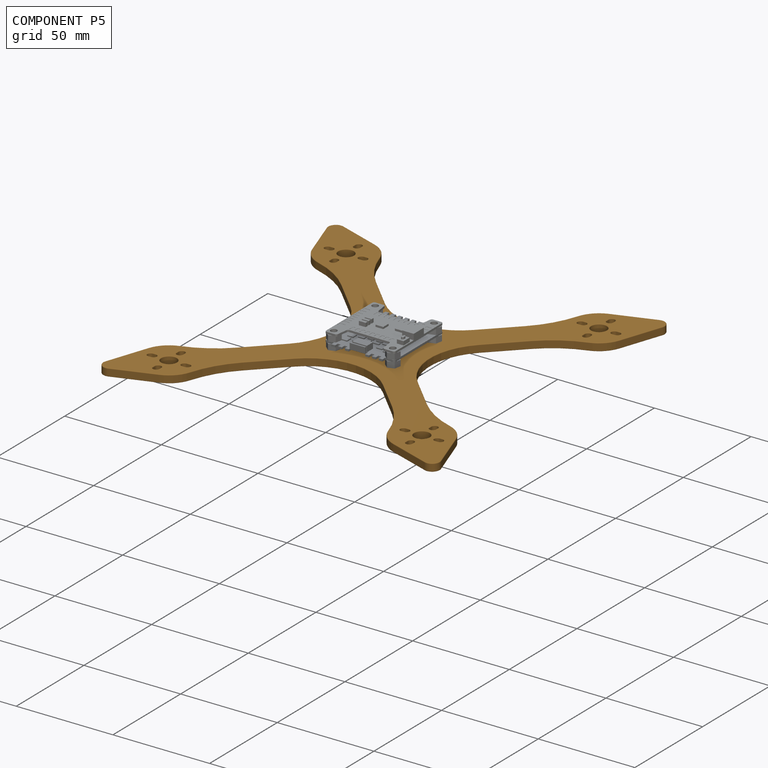
[diagram: component P5 — assembled]
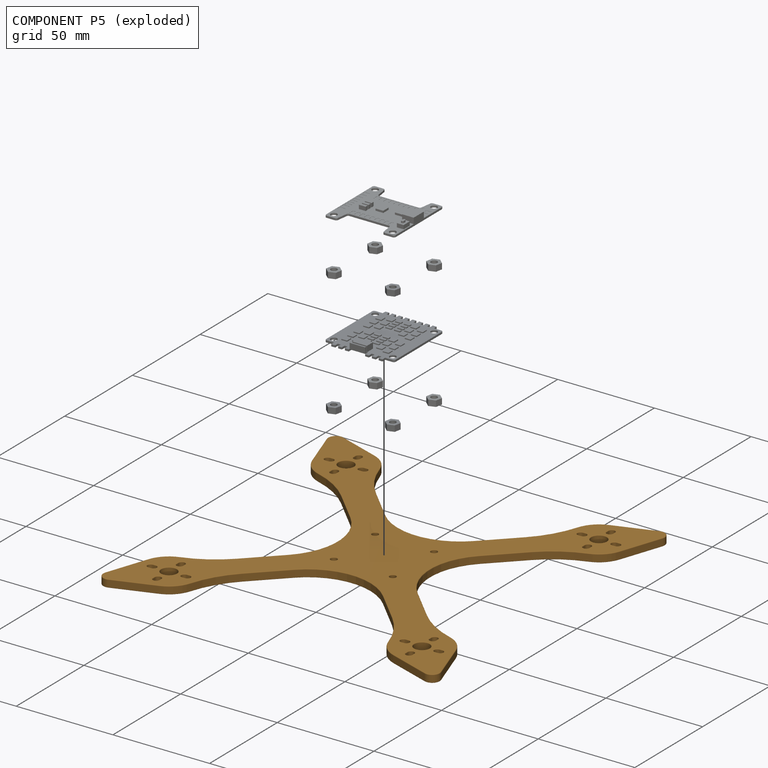
[diagram: component P5 — exploded]
COMPONENT P5 — geometry summary (no construction recipe available for this part):
  bounding box: 174.8 x 174.8 x 4.0 mm
  B-rep topology: 1 solid, 338 faces, 1568 edges
  volume: 34764 mm^3 (28% of its bounding box)
  symmetry: 2-fold rotationally symmetric about the x axis; 2-fold rotationally symmetric about the y axis; 4-fold rotationally symmetric about the z axis; mirror-symmetric across its x mid-plane, y mid-plane, z mid-plane
Held by: FASTENED mate "Fastened 3" to P7; FASTENED mate "Fastened 1" to P9; FASTENED mate "Fastened 2" to P0; FASTENED mate "Fastened 4" to P8.
PROVENANCE & LICENSES
Assembly (occurrences, transforms, mates, per-part STEP geometry): AutoMate dataset, Zenodo record 7776208, CC0.
Construction recipes: CADFS (HuggingFace VladPyatov/CADFS, CC-BY-4.0, layered over the ABC dataset), FeatureScript reconstruction programs keyed by ABC model id.
Join: ABC meta listings map ABC model id -> Onshape documentId; within a shared document, parts are matched by geometric signature (bounding-box dims + volume at 0.1% relative tolerance, exact B-rep face/solid counts).
Verification: 1 of this assembly's 11 components carries a recipe attachment, and every attachment is mesh-verified: the CADFS STEP and the AutoMate member STEP were compared as meshes in their shared local frame (symmetric sampled-point-to-mesh distance); worst across the 1 attachment: below the mesh-comparison resolution (tessellation chordal tolerance ~0.0766 mm) on a 51 mm part.
Renders: orthographic iso camera (az 35 / el 25); the floor grid conveys scale (grid pitch printed in each image; no ruler). In the exploded view each component is displaced by its stored offset vector: the offsets alone carry the explosion direction (mate normal/axis signs are not orientation cues and do not encode it), and separation distances are assigned per mate-chain, not proportionally to assembly-order depth.
